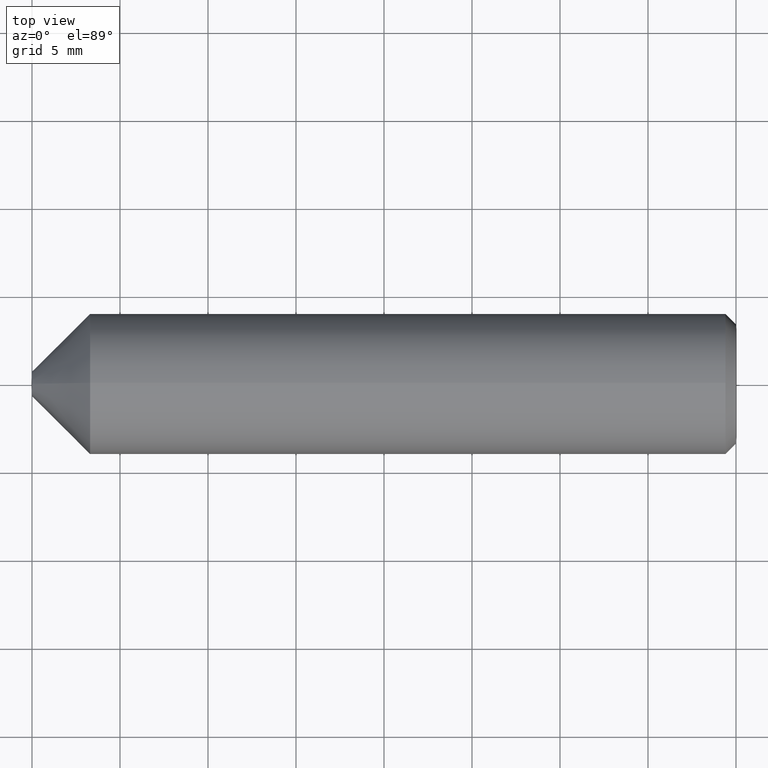
[diagram: clean part render]
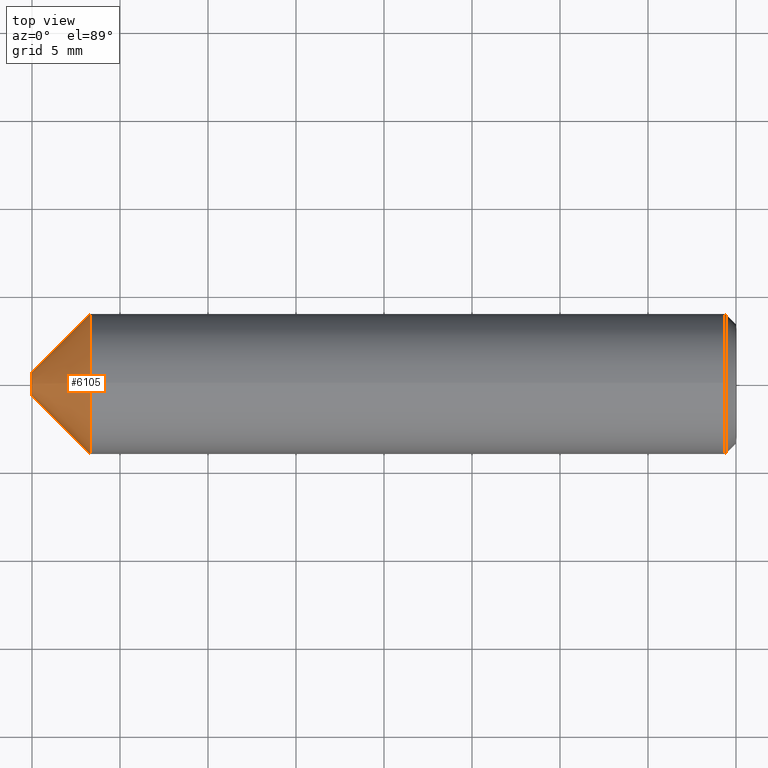
[diagram: same view with one face highlighted and labeled with its STEP entity id]
A machine part, top view. The second image highlights one B-rep face of the part: STEP entity #6105.
In plain terms, the highlighted conical surface has half-angle 45 deg.
Its self-contained STEP definition (entity closure, byte-faithful):
#586 = AXIS2_PLACEMENT_3D ( 'NONE', #9685, #3301, #9835 ) ;
#1257 = EDGE_CURVE ( 'NONE', #5596, #5596, #2350, .T. ) ;
#2145 = FACE_OUTER_BOUND ( 'NONE', #2659, .T. ) ;
#2350 = CIRCLE ( 'NONE', #586, 4.000000000000000000 ) ;
#2392 = EDGE_LOOP ( 'NONE', ( #7948 ) ) ;
#2516 = CARTESIAN_POINT ( 'NONE',  ( 2.816687638038912500E-016, 0.0000000000000000000, 0.6999999999999999600 ) ) ;
#2600 = CARTESIAN_POINT ( 'NONE',  ( 3.299999999999963400, 0.0000000000000000000, 4.000000000000000000 ) ) ;
#2659 = EDGE_LOOP ( 'NONE', ( #5860 ) ) ;
#2928 = DIRECTION ( 'NONE',  ( 0.0000000000000000000, 0.0000000000000000000, -1.000000000000000000 ) ) ;
#3301 = DIRECTION ( 'NONE',  ( -1.000000000000000000, -0.0000000000000000000, -0.0000000000000000000 ) ) ;
#3794 = CARTESIAN_POINT ( 'NONE',  ( 2.816687638038912500E-016, 0.0000000000000000000, 0.0000000000000000000 ) ) ;
#4548 = CARTESIAN_POINT ( 'NONE',  ( 2.816687638038912500E-016, 0.0000000000000000000, 0.0000000000000000000 ) ) ;
#5470 = AXIS2_PLACEMENT_3D ( 'NONE', #4548, #7180, #9983 ) ;
#5480 = CONICAL_SURFACE ( 'NONE', #6154, 0.6999999999999999600, 0.7853981633974539400 ) ;
#5596 = VERTEX_POINT ( 'NONE', #2600 ) ;
#5860 = ORIENTED_EDGE ( 'NONE', *, *, #1257, .T. ) ;
#5875 = EDGE_CURVE ( 'NONE', #10303, #10303, #7909, .T. ) ;
#6105 = ADVANCED_FACE ( 'NONE', ( #2145, #8912 ), #5480, .T. ) ;
#6154 = AXIS2_PLACEMENT_3D ( 'NONE', #3794, #9324, #2928 ) ;
#7180 = DIRECTION ( 'NONE',  ( -1.000000000000000000, -0.0000000000000000000, -0.0000000000000000000 ) ) ;
#7909 = CIRCLE ( 'NONE', #5470, 0.6999999999999999600 ) ;
#7948 = ORIENTED_EDGE ( 'NONE', *, *, #5875, .F. ) ;
#8912 = FACE_BOUND ( 'NONE', #2392, .T. ) ;
#9324 = DIRECTION ( 'NONE',  ( 1.000000000000000000, 0.0000000000000000000, 0.0000000000000000000 ) ) ;
#9685 = CARTESIAN_POINT ( 'NONE',  ( 3.299999999999963400, 0.0000000000000000000, 0.0000000000000000000 ) ) ;
#9835 = DIRECTION ( 'NONE',  ( 0.0000000000000000000, 0.0000000000000000000, 1.000000000000000000 ) ) ;
#9983 = DIRECTION ( 'NONE',  ( 0.0000000000000000000, 0.0000000000000000000, 1.000000000000000000 ) ) ;
#10303 = VERTEX_POINT ( 'NONE', #2516 ) ;